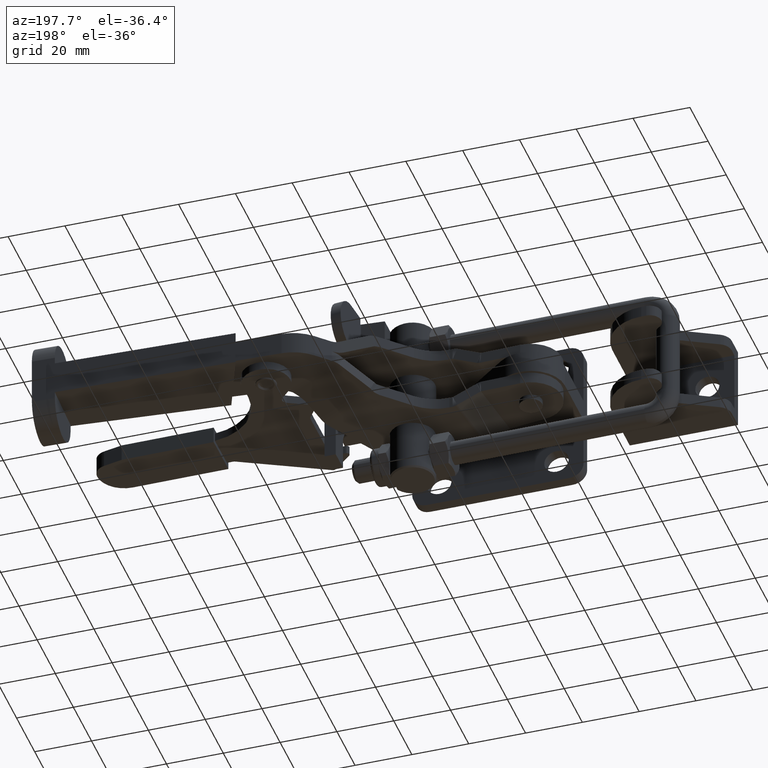
[diagram: clean part render]
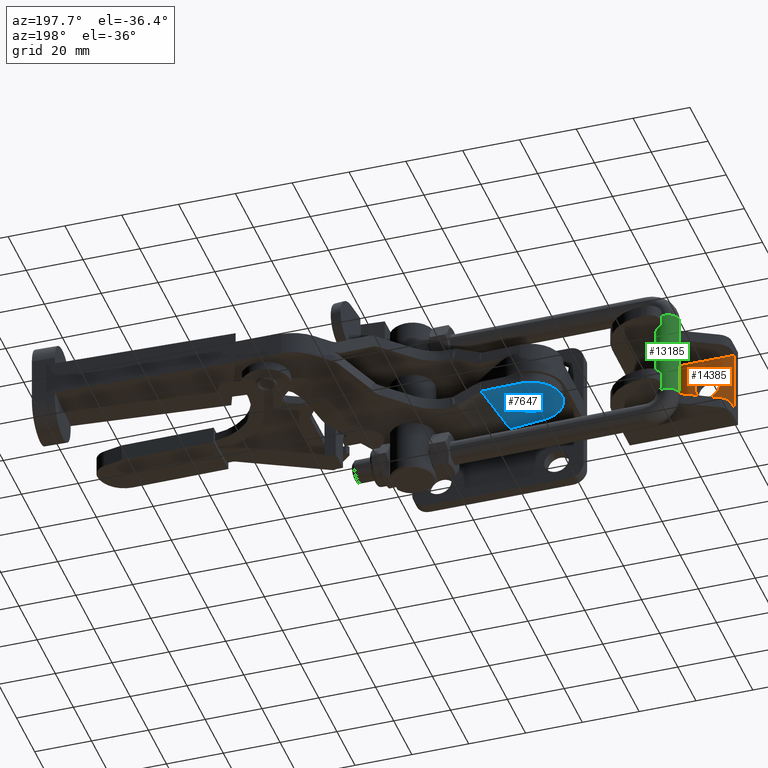
[diagram: same view with three faces highlighted in distinct colors, each labeled with its STEP entity id]
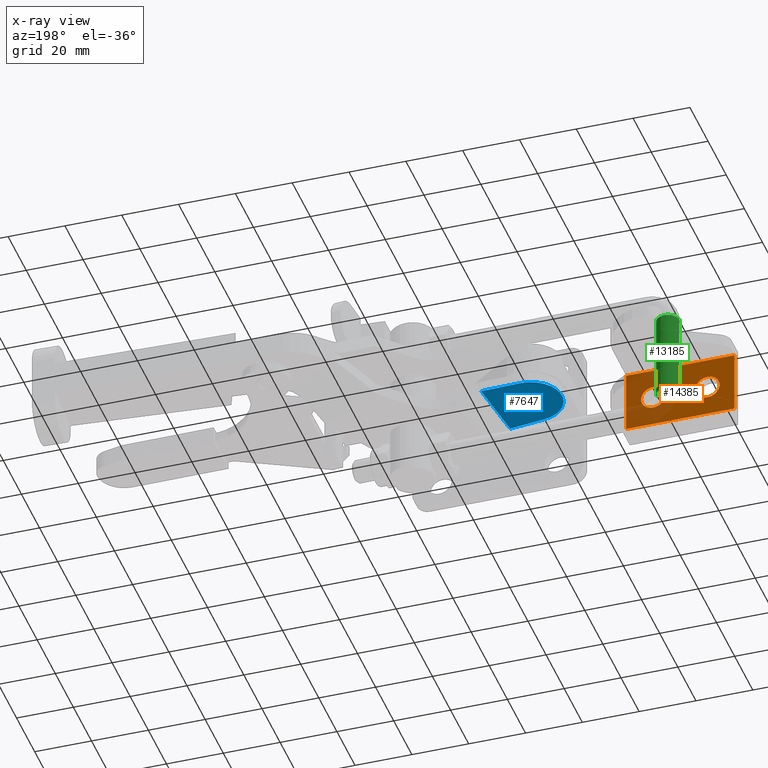
[diagram: x-ray of the same camera — body ghosted, the three highlighted faces saturated]
A machine part, auxiliary view with three faces highlighted in distinct colors.
The next image is the same camera in x-ray (body ghosted, the three faces saturated) — at least one of them is partly hidden behind the body in this view.
Their STEP definitions:

[orange] entity #14385 — the highlighted planar face has unit normal (-0, -1, 0).
#372 = CARTESIAN_POINT ( 'NONE',  ( -24.50000000000010300, 3.999999999999991600, -2.677711605089225000E-032 ) ) ;
#1156 = CIRCLE ( 'NONE', #13131, 4.250000000000003600 ) ;
#1259 = EDGE_CURVE ( 'NONE', #4629, #6385, #11511, .T. ) ;
#1521 = EDGE_CURVE ( 'NONE', #7513, #6571, #6057, .T. ) ;
#1579 = CARTESIAN_POINT ( 'NONE',  ( -53.10000000000011500, 3.999999999999994700, -11.09999999999999800 ) ) ;
#1604 = CARTESIAN_POINT ( 'NONE',  ( -14.99999999999994300, 3.999999999999991600, 11.09999999999999800 ) ) ;
#1670 = CARTESIAN_POINT ( 'NONE',  ( -20.25000000000009900, 3.999999999999990700, -2.677711605089225000E-032 ) ) ;
#1732 = ORIENTED_EDGE ( 'NONE', *, *, #5651, .F. ) ;
#2006 = DIRECTION ( 'NONE',  ( -1.000000000000000000, 1.246709413360200500E-016, -0.0000000000000000000 ) ) ;
#2159 = VERTEX_POINT ( 'NONE', #5395 ) ;
#2845 = LINE ( 'NONE', #10242, #9075 ) ;
#2883 = ORIENTED_EDGE ( 'NONE', *, *, #6625, .T. ) ;
#3899 = VECTOR ( 'NONE', #9206, 1000.000000000000000 ) ;
#3938 = CARTESIAN_POINT ( 'NONE',  ( -47.85000000000011500, 3.999999999999995600, 5.204748896376247700E-016 ) ) ;
#4629 = VERTEX_POINT ( 'NONE', #1670 ) ;
#4828 = ORIENTED_EDGE ( 'NONE', *, *, #1259, .F. ) ;
#4844 = CARTESIAN_POINT ( 'NONE',  ( -14.99999999999994300, 3.999999999999990700, 11.09999999999999800 ) ) ;
#4912 = PLANE ( 'NONE',  #10685 ) ;
#5190 = EDGE_CURVE ( 'NONE', #6385, #4629, #8953, .T. ) ;
#5196 = DIRECTION ( 'NONE',  ( 1.000000000000000000, -2.040851148208008200E-016, 0.0000000000000000000 ) ) ;
#5395 = CARTESIAN_POINT ( 'NONE',  ( -39.35000000000010800, 3.999999999999994200, -2.677711605089225000E-032 ) ) ;
#5651 = EDGE_CURVE ( 'NONE', #2159, #7114, #6879, .T. ) ;
#6057 = LINE ( 'NONE', #4844, #13646 ) ;
#6205 = EDGE_CURVE ( 'NONE', #11188, #6571, #7043, .T. ) ;
#6385 = VERTEX_POINT ( 'NONE', #6713 ) ;
#6571 = VERTEX_POINT ( 'NONE', #13655 ) ;
#6625 = EDGE_CURVE ( 'NONE', #14325, #11188, #2845, .T. ) ;
#6627 = FACE_OUTER_BOUND ( 'NONE', #7970, .T. ) ;
#6713 = CARTESIAN_POINT ( 'NONE',  ( -28.75000000000010300, 3.999999999999992500, 5.204748896376255600E-016 ) ) ;
#6804 = AXIS2_PLACEMENT_3D ( 'NONE', #372, #14525, #13283 ) ;
#6879 = CIRCLE ( 'NONE', #15261, 4.250000000000003600 ) ;
#7029 = ORIENTED_EDGE ( 'NONE', *, *, #5190, .F. ) ;
#7043 = LINE ( 'NONE', #1579, #12603 ) ;
#7114 = VERTEX_POINT ( 'NONE', #3938 ) ;
#7513 = VERTEX_POINT ( 'NONE', #1604 ) ;
#7667 = CARTESIAN_POINT ( 'NONE',  ( -43.60000000000010800, 3.999999999999994700, -2.677711605089225000E-032 ) ) ;
#7894 = DIRECTION ( 'NONE',  ( 1.000000000000000000, -1.246709413360200500E-016, 0.0000000000000000000 ) ) ;
#7901 = DIRECTION ( 'NONE',  ( -1.246709413360200500E-016, -1.000000000000000000, 0.0000000000000000000 ) ) ;
#7944 = EDGE_CURVE ( 'NONE', #14325, #7513, #9805, .T. ) ;
#7970 = EDGE_LOOP ( 'NONE', ( #12031, #12572, #9342, #2883 ) ) ;
#7999 = CARTESIAN_POINT ( 'NONE',  ( -14.99999999999994300, 3.999999999999990700, -11.09999999999999800 ) ) ;
#8126 = DIRECTION ( 'NONE',  ( 1.000000000000000000, -2.040851148208006500E-016, 0.0000000000000000000 ) ) ;
#8380 = CARTESIAN_POINT ( 'NONE',  ( -14.99999999999994300, 3.999999999999990700, -11.09999999999999800 ) ) ;
#8548 = AXIS2_PLACEMENT_3D ( 'NONE', #14589, #9889, #5196 ) ;
#8953 = CIRCLE ( 'NONE', #6804, 4.250000000000000000 ) ;
#9075 = VECTOR ( 'NONE', #2006, 1000.000000000000000 ) ;
#9206 = DIRECTION ( 'NONE',  ( 0.0000000000000000000, 0.0000000000000000000, 1.000000000000000000 ) ) ;
#9271 = CARTESIAN_POINT ( 'NONE',  ( -14.99999999999994300, 3.999999999999990700, -11.09999999999999800 ) ) ;
#9342 = ORIENTED_EDGE ( 'NONE', *, *, #7944, .F. ) ;
#9784 = DIRECTION ( 'NONE',  ( 0.0000000000000000000, 0.0000000000000000000, 1.000000000000000000 ) ) ;
#9805 = LINE ( 'NONE', #9271, #3899 ) ;
#9889 = DIRECTION ( 'NONE',  ( 1.246709413360200500E-016, 1.000000000000000000, -0.0000000000000000000 ) ) ;
#10242 = CARTESIAN_POINT ( 'NONE',  ( -14.99999999999994300, 3.999999999999990700, -11.09999999999999800 ) ) ;
#10685 = AXIS2_PLACEMENT_3D ( 'NONE', #7999, #7901, #7894 ) ;
#11188 = VERTEX_POINT ( 'NONE', #11612 ) ;
#11511 = CIRCLE ( 'NONE', #8548, 4.250000000000000000 ) ;
#11612 = CARTESIAN_POINT ( 'NONE',  ( -53.10000000000011500, 3.999999999999994700, -11.09999999999999800 ) ) ;
#11677 = EDGE_LOOP ( 'NONE', ( #4828, #7029 ) ) ;
#12031 = ORIENTED_EDGE ( 'NONE', *, *, #6205, .T. ) ;
#12380 = DIRECTION ( 'NONE',  ( 1.000000000000000000, -2.040851148208006500E-016, 0.0000000000000000000 ) ) ;
#12399 = DIRECTION ( 'NONE',  ( 1.246709413360200500E-016, 1.000000000000000000, -0.0000000000000000000 ) ) ;
#12410 = CARTESIAN_POINT ( 'NONE',  ( -43.60000000000010800, 3.999999999999994700, -2.677711605089225000E-032 ) ) ;
#12553 = FACE_BOUND ( 'NONE', #11677, .T. ) ;
#12572 = ORIENTED_EDGE ( 'NONE', *, *, #1521, .F. ) ;
#12603 = VECTOR ( 'NONE', #9784, 1000.000000000000000 ) ;
#13131 = AXIS2_PLACEMENT_3D ( 'NONE', #12410, #12399, #12380 ) ;
#13283 = DIRECTION ( 'NONE',  ( 1.000000000000000000, -2.040851148208008200E-016, 0.0000000000000000000 ) ) ;
#13474 = FACE_BOUND ( 'NONE', #14257, .T. ) ;
#13646 = VECTOR ( 'NONE', #14296, 1000.000000000000000 ) ;
#13655 = CARTESIAN_POINT ( 'NONE',  ( -53.10000000000011500, 3.999999999999994700, 11.09999999999999800 ) ) ;
#13709 = ORIENTED_EDGE ( 'NONE', *, *, #13822, .F. ) ;
#13822 = EDGE_CURVE ( 'NONE', #7114, #2159, #1156, .T. ) ;
#14257 = EDGE_LOOP ( 'NONE', ( #1732, #13709 ) ) ;
#14296 = DIRECTION ( 'NONE',  ( -1.000000000000000000, 1.246709413360200500E-016, -0.0000000000000000000 ) ) ;
#14325 = VERTEX_POINT ( 'NONE', #8380 ) ;
#14385 = ADVANCED_FACE ( 'NONE', ( #12553, #13474, #6627 ), #4912, .F. ) ;
#14525 = DIRECTION ( 'NONE',  ( 1.246709413360200500E-016, 1.000000000000000000, -0.0000000000000000000 ) ) ;
#14589 = CARTESIAN_POINT ( 'NONE',  ( -24.50000000000010300, 3.999999999999991600, -2.677711605089225000E-032 ) ) ;
#14770 = DIRECTION ( 'NONE',  ( 1.246709413360200500E-016, 1.000000000000000000, -0.0000000000000000000 ) ) ;
#15261 = AXIS2_PLACEMENT_3D ( 'NONE', #7667, #14770, #8126 ) ;

[blue] entity #7647 — the highlighted planar face has unit normal (-0, 0, -1).
#809 = AXIS2_PLACEMENT_3D ( 'NONE', #8457, #8431, #8353 ) ;
#1322 = DIRECTION ( 'NONE',  ( -1.000000000000000000, 0.0000000000000000000, 0.0000000000000000000 ) ) ;
#1400 = ORIENTED_EDGE ( 'NONE', *, *, #4984, .F. ) ;
#1428 = VERTEX_POINT ( 'NONE', #2274 ) ;
#2274 = CARTESIAN_POINT ( 'NONE',  ( 15.99999999999821700, 24.49999999995290500, -8.000000000000014200 ) ) ;
#2515 = CARTESIAN_POINT ( 'NONE',  ( 26.13669359340609000, 35.14547882009586000, -8.000000000000014200 ) ) ;
#3082 = VERTEX_POINT ( 'NONE', #7902 ) ;
#3162 = FACE_OUTER_BOUND ( 'NONE', #8197, .T. ) ;
#3237 = DIRECTION ( 'NONE',  ( 0.9924473458923385200, -0.1226713725008927000, 0.0000000000000000000 ) ) ;
#3338 = DIRECTION ( 'NONE',  ( -0.9996794100714375700, 0.02531949997970718200, 3.267684785108366600E-019 ) ) ;
#3344 = EDGE_CURVE ( 'NONE', #4695, #3082, #13559, .T. ) ;
#3510 = FACE_BOUND ( 'NONE', #6510, .T. ) ;
#3667 = DIRECTION ( 'NONE',  ( 0.9924473458923385200, -0.1226713725008940400, -3.268570272338445200E-019 ) ) ;
#3878 = VECTOR ( 'NONE', #12376, 1000.000000000000100 ) ;
#3986 = EDGE_CURVE ( 'NONE', #1428, #10780, #5740, .T. ) ;
#4406 = CARTESIAN_POINT ( 'NONE',  ( 11.99999999999823800, 24.49999999995290500, -8.000000000000014200 ) ) ;
#4695 = VERTEX_POINT ( 'NONE', #2515 ) ;
#4984 = EDGE_CURVE ( 'NONE', #3082, #10769, #8772, .T. ) ;
#5208 = EDGE_CURVE ( 'NONE', #10769, #13666, #15236, .T. ) ;
#5434 = VECTOR ( 'NONE', #3667, 999.9999999999998900 ) ;
#5481 = DIRECTION ( 'NONE',  ( 0.9924473458923386300, -0.1226713725008927200, -3.268570272338445700E-019 ) ) ;
#5512 = CIRCLE ( 'NONE', #809, 3.999999999999976000 ) ;
#5574 = PLANE ( 'NONE',  #6923 ) ;
#5579 = CARTESIAN_POINT ( 'NONE',  ( 95.78305583180583900, 36.24089244832406100, -8.000000000000014200 ) ) ;
#5740 = CIRCLE ( 'NONE', #12552, 3.999999999999976000 ) ;
#5760 = EDGE_CURVE ( 'NONE', #13666, #7214, #11695, .T. ) ;
#6510 = EDGE_LOOP ( 'NONE', ( #8514, #8728 ) ) ;
#6923 = AXIS2_PLACEMENT_3D ( 'NONE', #5579, #14212, #5481 ) ;
#7214 = VERTEX_POINT ( 'NONE', #14096 ) ;
#7478 = DIRECTION ( 'NONE',  ( 3.262364081729775300E-019, -2.514498489939989100E-020, 1.000000000000000000 ) ) ;
#7647 = ADVANCED_FACE ( 'NONE', ( #3510, #3162 ), #5574, .T. ) ;
#7902 = CARTESIAN_POINT ( 'NONE',  ( 12.27851449977501400, 35.49647351073864600, -8.000000000000014200 ) ) ;
#7932 = ORIENTED_EDGE ( 'NONE', *, *, #3344, .F. ) ;
#8197 = EDGE_LOOP ( 'NONE', ( #11515, #13974, #1400, #7932, #9239 ) ) ;
#8353 = DIRECTION ( 'NONE',  ( -1.000000000000000000, 0.0000000000000000000, 0.0000000000000000000 ) ) ;
#8423 = AXIS2_PLACEMENT_3D ( 'NONE', #9813, #7478, #11010 ) ;
#8431 = DIRECTION ( 'NONE',  ( -3.262364081729775300E-019, 2.514498489939989100E-020, -1.000000000000000000 ) ) ;
#8457 = CARTESIAN_POINT ( 'NONE',  ( 11.99999999999824300, 24.49999999995290500, -8.000000000000014200 ) ) ;
#8514 = ORIENTED_EDGE ( 'NONE', *, *, #3986, .F. ) ;
#8703 = AXIS2_PLACEMENT_3D ( 'NONE', #4406, #11468, #3237 ) ;
#8728 = ORIENTED_EDGE ( 'NONE', *, *, #10529, .F. ) ;
#8772 = CIRCLE ( 'NONE', #8703, 10.99999999999992700 ) ;
#8996 = CARTESIAN_POINT ( 'NONE',  ( 7.999999999998267200, 24.49999999995290500, -8.000000000000014200 ) ) ;
#9187 = CARTESIAN_POINT ( 'NONE',  ( 1.083079195182586000, 25.84938509746271900, -8.000000000000014200 ) ) ;
#9239 = ORIENTED_EDGE ( 'NONE', *, *, #13848, .F. ) ;
#9785 = LINE ( 'NONE', #12238, #3878 ) ;
#9813 = CARTESIAN_POINT ( 'NONE',  ( 11.99999999999823800, 24.49999999995290500, -8.000000000000014200 ) ) ;
#10495 = CARTESIAN_POINT ( 'NONE',  ( 52.33340342996663000, 8.430881550099707400, -8.000000000000014200 ) ) ;
#10529 = EDGE_CURVE ( 'NONE', #10780, #1428, #5512, .T. ) ;
#10678 = DIRECTION ( 'NONE',  ( -3.262364081729775300E-019, 2.514498489939989100E-020, -1.000000000000000000 ) ) ;
#10769 = VERTEX_POINT ( 'NONE', #9187 ) ;
#10780 = VERTEX_POINT ( 'NONE', #8996 ) ;
#11010 = DIRECTION ( 'NONE',  ( 0.9924473458923385200, -0.1226713725008927000, 0.0000000000000000000 ) ) ;
#11468 = DIRECTION ( 'NONE',  ( 3.262364081729775300E-019, -2.514498489939989100E-020, 1.000000000000000000 ) ) ;
#11515 = ORIENTED_EDGE ( 'NONE', *, *, #5760, .F. ) ;
#11695 = LINE ( 'NONE', #10495, #5434 ) ;
#12238 = CARTESIAN_POINT ( 'NONE',  ( 27.31811155120893600, 44.70349625079224200, -8.000000000000014200 ) ) ;
#12274 = CARTESIAN_POINT ( 'NONE',  ( 12.27851449977501400, 35.49647351073864600, -8.000000000000014200 ) ) ;
#12376 = DIRECTION ( 'NONE',  ( 0.1226713725008926500, 0.9924473458923386300, -1.506479442442821200E-020 ) ) ;
#12552 = AXIS2_PLACEMENT_3D ( 'NONE', #14817, #10678, #1322 ) ;
#13369 = VECTOR ( 'NONE', #3338, 1000.000000000000100 ) ;
#13559 = LINE ( 'NONE', #12274, #13369 ) ;
#13628 = CARTESIAN_POINT ( 'NONE',  ( 10.65061490248841400, 13.58307919513725700, -8.000000000000014200 ) ) ;
#13666 = VERTEX_POINT ( 'NONE', #13628 ) ;
#13848 = EDGE_CURVE ( 'NONE', #7214, #4695, #9785, .T. ) ;
#13974 = ORIENTED_EDGE ( 'NONE', *, *, #5208, .F. ) ;
#14096 = CARTESIAN_POINT ( 'NONE',  ( 23.27854325475453500, 12.02220515055748100, -8.000000000000014200 ) ) ;
#14212 = DIRECTION ( 'NONE',  ( -3.262364081729772900E-019, 2.514498489939987300E-020, -1.000000000000000000 ) ) ;
#14817 = CARTESIAN_POINT ( 'NONE',  ( 11.99999999999824300, 24.49999999995290500, -8.000000000000014200 ) ) ;
#15236 = CIRCLE ( 'NONE', #8423, 10.99999999999992700 ) ;

[green] entity #13185 — the highlighted cylindrical surface (edge-blend (fillet) strip) has radius 4 mm, axis along (0, 0, -1).
#344 = CARTESIAN_POINT ( 'NONE',  ( -35.90334725159100800, 23.39999999999998400, 15.24999999999999500 ) ) ;
#499 = CARTESIAN_POINT ( 'NONE',  ( -39.90326461224403700, 23.42571201949412400, -15.25000000000001600 ) ) ;
#908 = ORIENTED_EDGE ( 'NONE', *, *, #11951, .F. ) ;
#1168 = DIRECTION ( 'NONE',  ( 0.006428004873534898200, 0.9999793401632585100, 0.0000000000000000000 ) ) ;
#1934 = VECTOR ( 'NONE', #2734, 1000.000000000000000 ) ;
#2734 = DIRECTION ( 'NONE',  ( 2.175363652452210600E-016, 3.364056101340595300E-019, -1.000000000000000000 ) ) ;
#2815 = CARTESIAN_POINT ( 'NONE',  ( -31.90342989093796800, 23.37428798050584400, -15.25000000000002300 ) ) ;
#3010 = FACE_OUTER_BOUND ( 'NONE', #10755, .T. ) ;
#3286 = EDGE_CURVE ( 'NONE', #9254, #13448, #5050, .T. ) ;
#3544 = AXIS2_PLACEMENT_3D ( 'NONE', #8946, #8924, #8910 ) ;
#3656 = CARTESIAN_POINT ( 'NONE',  ( -39.90326461224404400, 23.42571201949412400, 15.24999999999999300 ) ) ;
#3685 = LINE ( 'NONE', #5519, #6074 ) ;
#4293 = VERTEX_POINT ( 'NONE', #8762 ) ;
#5050 = LINE ( 'NONE', #3656, #1934 ) ;
#5519 = CARTESIAN_POINT ( 'NONE',  ( -31.90342989093797100, 23.37428798050584400, 15.24999999999999600 ) ) ;
#5727 = DIRECTION ( 'NONE',  ( 2.175363652452210600E-016, 3.364056101340595300E-019, -1.000000000000000000 ) ) ;
#5799 = AXIS2_PLACEMENT_3D ( 'NONE', #8633, #7615, #8133 ) ;
#5923 = VERTEX_POINT ( 'NONE', #2815 ) ;
#6074 = VECTOR ( 'NONE', #5727, 1000.000000000000000 ) ;
#6173 = ORIENTED_EDGE ( 'NONE', *, *, #8907, .T. ) ;
#7179 = DIRECTION ( 'NONE',  ( 7.034172774971569400E-016, -6.256422420562502500E-018, 1.000000000000000000 ) ) ;
#7244 = ORIENTED_EDGE ( 'NONE', *, *, #3286, .F. ) ;
#7615 = DIRECTION ( 'NONE',  ( 2.175363652452210600E-016, 3.364056101340595300E-019, -1.000000000000000000 ) ) ;
#8133 = DIRECTION ( 'NONE',  ( 0.9999793401632585100, -0.006428004873534898200, 4.336808689942017700E-016 ) ) ;
#8162 = ORIENTED_EDGE ( 'NONE', *, *, #14223, .T. ) ;
#8272 = CIRCLE ( 'NONE', #3544, 4.000000000000000000 ) ;
#8633 = CARTESIAN_POINT ( 'NONE',  ( -35.90334725159100800, 23.39999999999998400, 15.24999999999999500 ) ) ;
#8762 = CARTESIAN_POINT ( 'NONE',  ( -31.90342989093797100, 23.37428798050584400, 15.24999999999999100 ) ) ;
#8878 = CYLINDRICAL_SURFACE ( 'NONE', #5799, 4.000000000000000000 ) ;
#8907 = EDGE_CURVE ( 'NONE', #4293, #5923, #3685, .T. ) ;
#8910 = DIRECTION ( 'NONE',  ( 0.006428004873534898200, 0.9999793401632585100, 0.0000000000000000000 ) ) ;
#8924 = DIRECTION ( 'NONE',  ( 7.034172774971569400E-016, -6.256422420562502500E-018, 1.000000000000000000 ) ) ;
#8946 = CARTESIAN_POINT ( 'NONE',  ( -35.90334725159100100, 23.39999999999998400, -15.25000000000002000 ) ) ;
#9254 = VERTEX_POINT ( 'NONE', #9697 ) ;
#9471 = AXIS2_PLACEMENT_3D ( 'NONE', #344, #7179, #1168 ) ;
#9697 = CARTESIAN_POINT ( 'NONE',  ( -39.90326461224404400, 23.42571201949412400, 15.24999999999999800 ) ) ;
#10755 = EDGE_LOOP ( 'NONE', ( #7244, #908, #6173, #8162 ) ) ;
#11951 = EDGE_CURVE ( 'NONE', #4293, #9254, #12265, .T. ) ;
#12265 = CIRCLE ( 'NONE', #9471, 4.000000000000000000 ) ;
#13185 = ADVANCED_FACE ( 'NONE', ( #3010 ), #8878, .T. ) ;
#13448 = VERTEX_POINT ( 'NONE', #499 ) ;
#14223 = EDGE_CURVE ( 'NONE', #5923, #13448, #8272, .T. ) ;